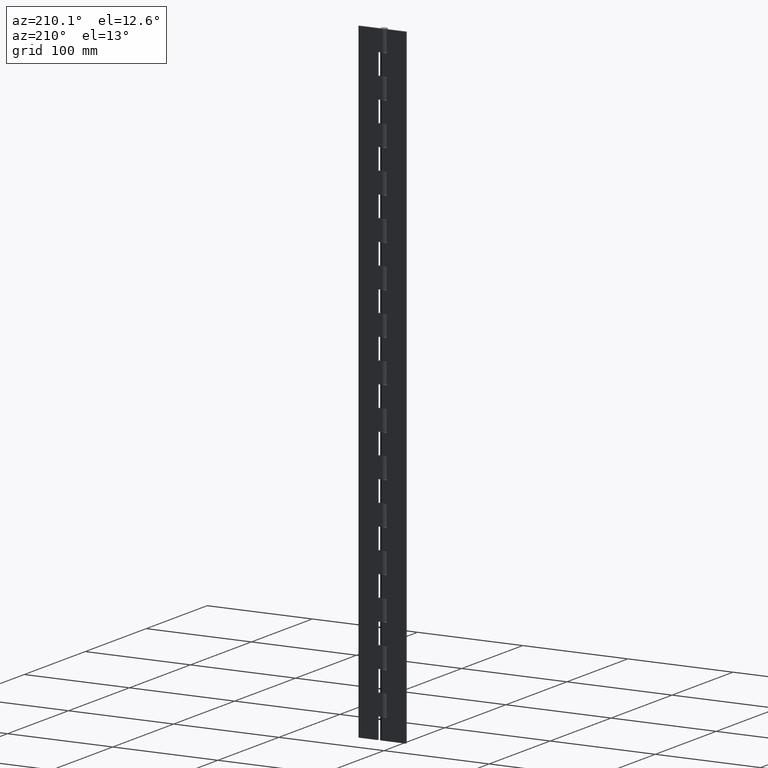
[diagram: clean part render]
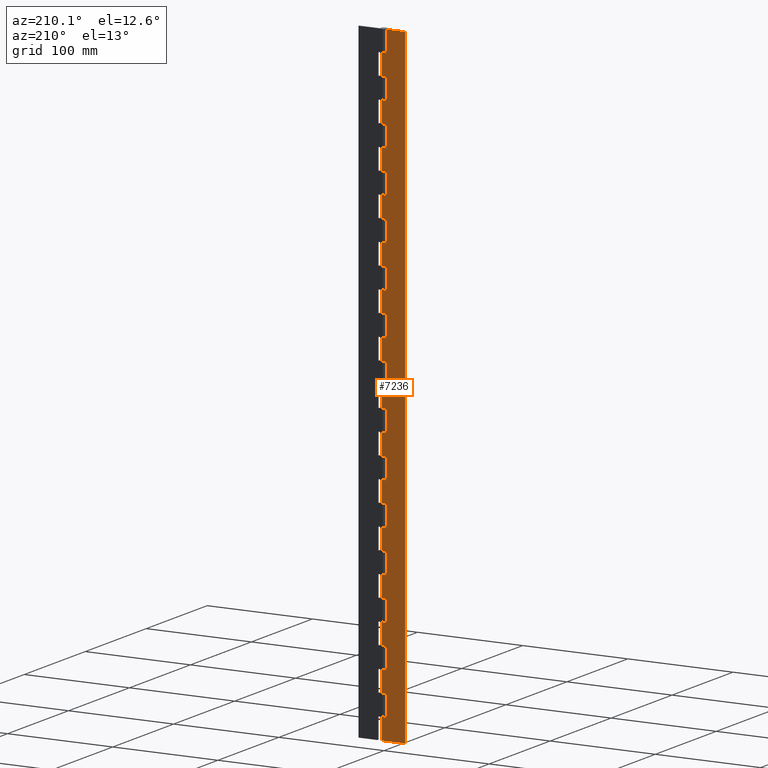
[diagram: same view with one face highlighted and labeled with its STEP entity id]
A machine part, auxiliary view. The second image highlights one B-rep face of the part: STEP entity #7236.
In plain terms, the highlighted face is a freeform B-spline surface patch.
Its self-contained STEP definition (entity closure, byte-faithful):
#4225=CARTESIAN_POINT('',(-4.299994999999895,3.099998000000050,580.0));
#4226=VERTEX_POINT('',#4225);
#4232=CARTESIAN_POINT('',(-4.299994999999895,3.099998000000000,599.999978000000060));
#4233=VERTEX_POINT('',#4232);
#4234=CARTESIAN_POINT('',(-4.299994999999895,3.099998000000050,580.0));
#4235=CARTESIAN_POINT('',(-4.299994999999895,3.099998000000000,599.999978000000060));
#4236=QUASI_UNIFORM_CURVE('',1,(#4234,#4235),.UNSPECIFIED.,.F.,.U.);
#4237=EDGE_CURVE('',#4226,#4233,#4236,.T.);
#4254=CARTESIAN_POINT('',(0.003521362805219,3.099998000000000,580.0));
#4255=VERTEX_POINT('',#4254);
#4275=CARTESIAN_POINT('',(0.003521362805219,3.099998000000000,580.0));
#4276=CARTESIAN_POINT('',(-4.299994999999895,3.099998000000050,580.0));
#4277=QUASI_UNIFORM_CURVE('',1,(#4275,#4276),.UNSPECIFIED.,.F.,.U.);
#4278=EDGE_CURVE('',#4255,#4226,#4277,.T.);
#4322=CARTESIAN_POINT('',(0.003521362805219,3.099998000000000,560.000008000000090));
#4323=VERTEX_POINT('',#4322);
#4380=CARTESIAN_POINT('',(-4.299994999999895,3.099998000000050,560.000008000000090));
#4381=VERTEX_POINT('',#4380);
#4387=CARTESIAN_POINT('',(-4.299994999999895,3.099998000000050,560.000008000000090));
#4388=CARTESIAN_POINT('',(0.003521362805219,3.099998000000000,560.000008000000090));
#4389=QUASI_UNIFORM_CURVE('',1,(#4387,#4388),.UNSPECIFIED.,.F.,.U.);
#4390=EDGE_CURVE('',#4381,#4323,#4389,.T.);
#4407=CARTESIAN_POINT('',(-4.299994999999895,3.099998000000050,540.0));
#4408=VERTEX_POINT('',#4407);
#4414=CARTESIAN_POINT('',(-4.299994999999895,3.099998000000050,540.0));
#4415=CARTESIAN_POINT('',(-4.299994999999895,3.099998000000050,560.000008000000090));
#4416=QUASI_UNIFORM_CURVE('',1,(#4414,#4415),.UNSPECIFIED.,.F.,.U.);
#4417=EDGE_CURVE('',#4408,#4381,#4416,.T.);
#4430=CARTESIAN_POINT('',(0.003521362805219,3.099998000000000,540.0));
#4431=VERTEX_POINT('',#4430);
#4451=CARTESIAN_POINT('',(0.003521362805219,3.099998000000000,540.0));
#4452=CARTESIAN_POINT('',(-4.299994999999895,3.099998000000050,540.0));
#4453=QUASI_UNIFORM_CURVE('',1,(#4451,#4452),.UNSPECIFIED.,.F.,.U.);
#4454=EDGE_CURVE('',#4431,#4408,#4453,.T.);
#4498=CARTESIAN_POINT('',(0.003521362805219,3.099998000000000,520.000007999999980));
#4499=VERTEX_POINT('',#4498);
#4556=CARTESIAN_POINT('',(-4.299994999999895,3.099998000000050,520.000007999999980));
#4557=VERTEX_POINT('',#4556);
#4563=CARTESIAN_POINT('',(-4.299994999999895,3.099998000000050,520.000007999999980));
#4564=CARTESIAN_POINT('',(0.003521362805219,3.099998000000000,520.000007999999980));
#4565=QUASI_UNIFORM_CURVE('',1,(#4563,#4564),.UNSPECIFIED.,.F.,.U.);
#4566=EDGE_CURVE('',#4557,#4499,#4565,.T.);
#4583=CARTESIAN_POINT('',(-4.299994999999895,3.099998000000050,500.0));
#4584=VERTEX_POINT('',#4583);
#4590=CARTESIAN_POINT('',(-4.299994999999895,3.099998000000050,500.0));
#4591=CARTESIAN_POINT('',(-4.299994999999895,3.099998000000050,520.000007999999980));
#4592=QUASI_UNIFORM_CURVE('',1,(#4590,#4591),.UNSPECIFIED.,.F.,.U.);
#4593=EDGE_CURVE('',#4584,#4557,#4592,.T.);
#4606=CARTESIAN_POINT('',(0.003521362805219,3.099998000000000,500.0));
#4607=VERTEX_POINT('',#4606);
#4627=CARTESIAN_POINT('',(0.003521362805219,3.099998000000000,500.0));
#4628=CARTESIAN_POINT('',(-4.299994999999895,3.099998000000050,500.0));
#4629=QUASI_UNIFORM_CURVE('',1,(#4627,#4628),.UNSPECIFIED.,.F.,.U.);
#4630=EDGE_CURVE('',#4607,#4584,#4629,.T.);
#4674=CARTESIAN_POINT('',(0.003521362805219,3.099998000000000,480.000007999999980));
#4675=VERTEX_POINT('',#4674);
#4732=CARTESIAN_POINT('',(-4.299994999999895,3.099998000000050,480.000007999999980));
#4733=VERTEX_POINT('',#4732);
#4739=CARTESIAN_POINT('',(-4.299994999999895,3.099998000000050,480.000007999999980));
#4740=CARTESIAN_POINT('',(0.003521362805219,3.099998000000000,480.000007999999980));
#4741=QUASI_UNIFORM_CURVE('',1,(#4739,#4740),.UNSPECIFIED.,.F.,.U.);
#4742=EDGE_CURVE('',#4733,#4675,#4741,.T.);
#4759=CARTESIAN_POINT('',(-4.299994999999895,3.099998000000050,460.0));
#4760=VERTEX_POINT('',#4759);
#4766=CARTESIAN_POINT('',(-4.299994999999895,3.099998000000050,460.0));
#4767=CARTESIAN_POINT('',(-4.299994999999895,3.099998000000050,480.000007999999980));
#4768=QUASI_UNIFORM_CURVE('',1,(#4766,#4767),.UNSPECIFIED.,.F.,.U.);
#4769=EDGE_CURVE('',#4760,#4733,#4768,.T.);
#4782=CARTESIAN_POINT('',(0.003521362805219,3.099998000000000,460.0));
#4783=VERTEX_POINT('',#4782);
#4803=CARTESIAN_POINT('',(0.003521362805219,3.099998000000000,460.0));
#4804=CARTESIAN_POINT('',(-4.299994999999895,3.099998000000050,460.0));
#4805=QUASI_UNIFORM_CURVE('',1,(#4803,#4804),.UNSPECIFIED.,.F.,.U.);
#4806=EDGE_CURVE('',#4783,#4760,#4805,.T.);
#4850=CARTESIAN_POINT('',(0.003521362805219,3.099998000000000,440.000007999999980));
#4851=VERTEX_POINT('',#4850);
#4908=CARTESIAN_POINT('',(-4.299994999999895,3.099998000000050,440.000007999999980));
#4909=VERTEX_POINT('',#4908);
#4915=CARTESIAN_POINT('',(-4.299994999999895,3.099998000000050,440.000007999999980));
#4916=CARTESIAN_POINT('',(0.003521362805219,3.099998000000000,440.000007999999980));
#4917=QUASI_UNIFORM_CURVE('',1,(#4915,#4916),.UNSPECIFIED.,.F.,.U.);
#4918=EDGE_CURVE('',#4909,#4851,#4917,.T.);
#4935=CARTESIAN_POINT('',(-4.299994999999895,3.099998000000050,420.0));
#4936=VERTEX_POINT('',#4935);
#4942=CARTESIAN_POINT('',(-4.299994999999895,3.099998000000050,420.0));
#4943=CARTESIAN_POINT('',(-4.299994999999895,3.099998000000050,440.000007999999980));
#4944=QUASI_UNIFORM_CURVE('',1,(#4942,#4943),.UNSPECIFIED.,.F.,.U.);
#4945=EDGE_CURVE('',#4936,#4909,#4944,.T.);
#4958=CARTESIAN_POINT('',(0.003521362805219,3.099998000000000,420.0));
#4959=VERTEX_POINT('',#4958);
#4979=CARTESIAN_POINT('',(0.003521362805219,3.099998000000000,420.0));
#4980=CARTESIAN_POINT('',(-4.299994999999895,3.099998000000050,420.0));
#4981=QUASI_UNIFORM_CURVE('',1,(#4979,#4980),.UNSPECIFIED.,.F.,.U.);
#4982=EDGE_CURVE('',#4959,#4936,#4981,.T.);
#5026=CARTESIAN_POINT('',(0.003521362805219,3.099998000000000,400.000007999999980));
#5027=VERTEX_POINT('',#5026);
#5084=CARTESIAN_POINT('',(-4.299994999999895,3.099998000000050,400.000007999999980));
#5085=VERTEX_POINT('',#5084);
#5091=CARTESIAN_POINT('',(-4.299994999999895,3.099998000000050,400.000007999999980));
#5092=CARTESIAN_POINT('',(0.003521362805219,3.099998000000000,400.000007999999980));
#5093=QUASI_UNIFORM_CURVE('',1,(#5091,#5092),.UNSPECIFIED.,.F.,.U.);
#5094=EDGE_CURVE('',#5085,#5027,#5093,.T.);
#5111=CARTESIAN_POINT('',(-4.299994999999895,3.099998000000050,380.0));
#5112=VERTEX_POINT('',#5111);
#5118=CARTESIAN_POINT('',(-4.299994999999895,3.099998000000050,380.0));
#5119=CARTESIAN_POINT('',(-4.299994999999895,3.099998000000050,400.000007999999980));
#5120=QUASI_UNIFORM_CURVE('',1,(#5118,#5119),.UNSPECIFIED.,.F.,.U.);
#5121=EDGE_CURVE('',#5112,#5085,#5120,.T.);
#5134=CARTESIAN_POINT('',(0.003521362805219,3.099998000000000,380.0));
#5135=VERTEX_POINT('',#5134);
#5155=CARTESIAN_POINT('',(0.003521362805219,3.099998000000000,380.0));
#5156=CARTESIAN_POINT('',(-4.299994999999895,3.099998000000050,380.0));
#5157=QUASI_UNIFORM_CURVE('',1,(#5155,#5156),.UNSPECIFIED.,.F.,.U.);
#5158=EDGE_CURVE('',#5135,#5112,#5157,.T.);
#5202=CARTESIAN_POINT('',(0.003521362805219,3.099998000000000,360.000007999999980));
#5203=VERTEX_POINT('',#5202);
#5260=CARTESIAN_POINT('',(-4.299994999999895,3.099998000000050,360.000007999999980));
#5261=VERTEX_POINT('',#5260);
#5267=CARTESIAN_POINT('',(-4.299994999999895,3.099998000000050,360.000007999999980));
#5268=CARTESIAN_POINT('',(0.003521362805219,3.099998000000000,360.000007999999980));
#5269=QUASI_UNIFORM_CURVE('',1,(#5267,#5268),.UNSPECIFIED.,.F.,.U.);
#5270=EDGE_CURVE('',#5261,#5203,#5269,.T.);
#5287=CARTESIAN_POINT('',(-4.299994999999895,3.099998000000050,340.0));
#5288=VERTEX_POINT('',#5287);
#5294=CARTESIAN_POINT('',(-4.299994999999895,3.099998000000050,340.0));
#5295=CARTESIAN_POINT('',(-4.299994999999895,3.099998000000050,360.000007999999980));
#5296=QUASI_UNIFORM_CURVE('',1,(#5294,#5295),.UNSPECIFIED.,.F.,.U.);
#5297=EDGE_CURVE('',#5288,#5261,#5296,.T.);
#5310=CARTESIAN_POINT('',(0.003521362805219,3.099998000000000,340.0));
#5311=VERTEX_POINT('',#5310);
#5331=CARTESIAN_POINT('',(0.003521362805219,3.099998000000000,340.0));
#5332=CARTESIAN_POINT('',(-4.299994999999895,3.099998000000050,340.0));
#5333=QUASI_UNIFORM_CURVE('',1,(#5331,#5332),.UNSPECIFIED.,.F.,.U.);
#5334=EDGE_CURVE('',#5311,#5288,#5333,.T.);
#5378=CARTESIAN_POINT('',(0.003521362805219,3.099998000000000,320.000007999999980));
#5379=VERTEX_POINT('',#5378);
#5436=CARTESIAN_POINT('',(-4.299994999999895,3.099998000000050,320.000007999999980));
#5437=VERTEX_POINT('',#5436);
#5443=CARTESIAN_POINT('',(-4.299994999999895,3.099998000000050,320.000007999999980));
#5444=CARTESIAN_POINT('',(0.003521362805219,3.099998000000000,320.000007999999980));
#5445=QUASI_UNIFORM_CURVE('',1,(#5443,#5444),.UNSPECIFIED.,.F.,.U.);
#5446=EDGE_CURVE('',#5437,#5379,#5445,.T.);
#5463=CARTESIAN_POINT('',(-4.299994999999895,3.099998000000050,300.0));
#5464=VERTEX_POINT('',#5463);
#5470=CARTESIAN_POINT('',(-4.299994999999895,3.099998000000050,300.0));
#5471=CARTESIAN_POINT('',(-4.299994999999895,3.099998000000050,320.000007999999980));
#5472=QUASI_UNIFORM_CURVE('',1,(#5470,#5471),.UNSPECIFIED.,.F.,.U.);
#5473=EDGE_CURVE('',#5464,#5437,#5472,.T.);
#5486=CARTESIAN_POINT('',(0.003521362805219,3.099998000000000,300.0));
#5487=VERTEX_POINT('',#5486);
#5507=CARTESIAN_POINT('',(0.003521362805219,3.099998000000000,300.0));
#5508=CARTESIAN_POINT('',(-4.299994999999895,3.099998000000050,300.0));
#5509=QUASI_UNIFORM_CURVE('',1,(#5507,#5508),.UNSPECIFIED.,.F.,.U.);
#5510=EDGE_CURVE('',#5487,#5464,#5509,.T.);
#5554=CARTESIAN_POINT('',(0.003521362805219,3.099998000000000,280.000007999999980));
#5555=VERTEX_POINT('',#5554);
#5612=CARTESIAN_POINT('',(-4.299994999999895,3.099998000000050,280.000007999999980));
#5613=VERTEX_POINT('',#5612);
#5619=CARTESIAN_POINT('',(-4.299994999999895,3.099998000000050,280.000007999999980));
#5620=CARTESIAN_POINT('',(0.003521362805219,3.099998000000000,280.000007999999980));
#5621=QUASI_UNIFORM_CURVE('',1,(#5619,#5620),.UNSPECIFIED.,.F.,.U.);
#5622=EDGE_CURVE('',#5613,#5555,#5621,.T.);
#5639=CARTESIAN_POINT('',(-4.299994999999895,3.099998000000050,260.0));
#5640=VERTEX_POINT('',#5639);
#5646=CARTESIAN_POINT('',(-4.299994999999895,3.099998000000050,260.0));
#5647=CARTESIAN_POINT('',(-4.299994999999895,3.099998000000050,280.000007999999980));
#5648=QUASI_UNIFORM_CURVE('',1,(#5646,#5647),.UNSPECIFIED.,.F.,.U.);
#5649=EDGE_CURVE('',#5640,#5613,#5648,.T.);
#5662=CARTESIAN_POINT('',(0.003521362805219,3.099998000000000,260.0));
#5663=VERTEX_POINT('',#5662);
#5683=CARTESIAN_POINT('',(0.003521362805219,3.099998000000000,260.0));
#5684=CARTESIAN_POINT('',(-4.299994999999895,3.099998000000050,260.0));
#5685=QUASI_UNIFORM_CURVE('',1,(#5683,#5684),.UNSPECIFIED.,.F.,.U.);
#5686=EDGE_CURVE('',#5663,#5640,#5685,.T.);
#5730=CARTESIAN_POINT('',(0.003521362805219,3.099998000000000,240.000008000000010));
#5731=VERTEX_POINT('',#5730);
#5788=CARTESIAN_POINT('',(-4.299994999999895,3.099998000000050,240.000008000000010));
#5789=VERTEX_POINT('',#5788);
#5795=CARTESIAN_POINT('',(-4.299994999999895,3.099998000000050,240.000008000000010));
#5796=CARTESIAN_POINT('',(0.003521362805219,3.099998000000000,240.000008000000010));
#5797=QUASI_UNIFORM_CURVE('',1,(#5795,#5796),.UNSPECIFIED.,.F.,.U.);
#5798=EDGE_CURVE('',#5789,#5731,#5797,.T.);
#5815=CARTESIAN_POINT('',(-4.299994999999895,3.099998000000050,220.0));
#5816=VERTEX_POINT('',#5815);
#5822=CARTESIAN_POINT('',(-4.299994999999895,3.099998000000050,220.0));
#5823=CARTESIAN_POINT('',(-4.299994999999895,3.099998000000050,240.000008000000010));
#5824=QUASI_UNIFORM_CURVE('',1,(#5822,#5823),.UNSPECIFIED.,.F.,.U.);
#5825=EDGE_CURVE('',#5816,#5789,#5824,.T.);
#5838=CARTESIAN_POINT('',(0.003521362805219,3.099998000000000,220.0));
#5839=VERTEX_POINT('',#5838);
#5859=CARTESIAN_POINT('',(0.003521362805219,3.099998000000000,220.0));
#5860=CARTESIAN_POINT('',(-4.299994999999895,3.099998000000050,220.0));
#5861=QUASI_UNIFORM_CURVE('',1,(#5859,#5860),.UNSPECIFIED.,.F.,.U.);
#5862=EDGE_CURVE('',#5839,#5816,#5861,.T.);
#5906=CARTESIAN_POINT('',(0.003521362805219,3.099998000000000,200.000008000000010));
#5907=VERTEX_POINT('',#5906);
#5964=CARTESIAN_POINT('',(-4.299994999999895,3.099998000000050,200.000008000000010));
#5965=VERTEX_POINT('',#5964);
#5971=CARTESIAN_POINT('',(-4.299994999999895,3.099998000000050,200.000008000000010));
#5972=CARTESIAN_POINT('',(0.003521362805219,3.099998000000000,200.000008000000010));
#5973=QUASI_UNIFORM_CURVE('',1,(#5971,#5972),.UNSPECIFIED.,.F.,.U.);
#5974=EDGE_CURVE('',#5965,#5907,#5973,.T.);
#5991=CARTESIAN_POINT('',(-4.299994999999895,3.099998000000050,180.0));
#5992=VERTEX_POINT('',#5991);
#5998=CARTESIAN_POINT('',(-4.299994999999895,3.099998000000050,180.0));
#5999=CARTESIAN_POINT('',(-4.299994999999895,3.099998000000050,200.000008000000010));
#6000=QUASI_UNIFORM_CURVE('',1,(#5998,#5999),.UNSPECIFIED.,.F.,.U.);
#6001=EDGE_CURVE('',#5992,#5965,#6000,.T.);
#6014=CARTESIAN_POINT('',(0.003521362805219,3.099998000000000,180.0));
#6015=VERTEX_POINT('',#6014);
#6035=CARTESIAN_POINT('',(0.003521362805219,3.099998000000000,180.0));
#6036=CARTESIAN_POINT('',(-4.299994999999895,3.099998000000050,180.0));
#6037=QUASI_UNIFORM_CURVE('',1,(#6035,#6036),.UNSPECIFIED.,.F.,.U.);
#6038=EDGE_CURVE('',#6015,#5992,#6037,.T.);
#6082=CARTESIAN_POINT('',(0.003521362805219,3.099998000000000,160.000008000000010));
#6083=VERTEX_POINT('',#6082);
#6140=CARTESIAN_POINT('',(-4.299994999999895,3.099998000000050,160.000008000000010));
#6141=VERTEX_POINT('',#6140);
#6147=CARTESIAN_POINT('',(-4.299994999999895,3.099998000000050,160.000008000000010));
#6148=CARTESIAN_POINT('',(0.003521362805219,3.099998000000000,160.000008000000010));
#6149=QUASI_UNIFORM_CURVE('',1,(#6147,#6148),.UNSPECIFIED.,.F.,.U.);
#6150=EDGE_CURVE('',#6141,#6083,#6149,.T.);
#6167=CARTESIAN_POINT('',(-4.299994999999895,3.099998000000050,140.0));
#6168=VERTEX_POINT('',#6167);
#6174=CARTESIAN_POINT('',(-4.299994999999895,3.099998000000050,140.0));
#6175=CARTESIAN_POINT('',(-4.299994999999895,3.099998000000050,160.000008000000010));
#6176=QUASI_UNIFORM_CURVE('',1,(#6174,#6175),.UNSPECIFIED.,.F.,.U.);
#6177=EDGE_CURVE('',#6168,#6141,#6176,.T.);
#6190=CARTESIAN_POINT('',(0.003521362805219,3.099998000000000,140.0));
#6191=VERTEX_POINT('',#6190);
#6211=CARTESIAN_POINT('',(0.003521362805219,3.099998000000000,140.0));
#6212=CARTESIAN_POINT('',(-4.299994999999895,3.099998000000050,140.0));
#6213=QUASI_UNIFORM_CURVE('',1,(#6211,#6212),.UNSPECIFIED.,.F.,.U.);
#6214=EDGE_CURVE('',#6191,#6168,#6213,.T.);
#6258=CARTESIAN_POINT('',(0.003521362805219,3.099998000000000,120.000007999999990));
#6259=VERTEX_POINT('',#6258);
#6316=CARTESIAN_POINT('',(-4.299994999999895,3.099998000000050,120.000007999999990));
#6317=VERTEX_POINT('',#6316);
#6323=CARTESIAN_POINT('',(-4.299994999999895,3.099998000000050,120.000007999999990));
#6324=CARTESIAN_POINT('',(0.003521362805219,3.099998000000000,120.000007999999990));
#6325=QUASI_UNIFORM_CURVE('',1,(#6323,#6324),.UNSPECIFIED.,.F.,.U.);
#6326=EDGE_CURVE('',#6317,#6259,#6325,.T.);
#6343=CARTESIAN_POINT('',(-4.299994999999895,3.099998000000050,100.0));
#6344=VERTEX_POINT('',#6343);
#6350=CARTESIAN_POINT('',(-4.299994999999895,3.099998000000050,100.0));
#6351=CARTESIAN_POINT('',(-4.299994999999895,3.099998000000050,120.000007999999990));
#6352=QUASI_UNIFORM_CURVE('',1,(#6350,#6351),.UNSPECIFIED.,.F.,.U.);
#6353=EDGE_CURVE('',#6344,#6317,#6352,.T.);
#6366=CARTESIAN_POINT('',(0.003521362805219,3.099998000000000,100.0));
#6367=VERTEX_POINT('',#6366);
#6387=CARTESIAN_POINT('',(0.003521362805219,3.099998000000000,100.0));
#6388=CARTESIAN_POINT('',(-4.299994999999895,3.099998000000050,100.0));
#6389=QUASI_UNIFORM_CURVE('',1,(#6387,#6388),.UNSPECIFIED.,.F.,.U.);
#6390=EDGE_CURVE('',#6367,#6344,#6389,.T.);
#6434=CARTESIAN_POINT('',(0.003521362805219,3.099998000000000,80.000007999999895));
#6435=VERTEX_POINT('',#6434);
#6492=CARTESIAN_POINT('',(-4.299994999999895,3.099998000000050,80.000007999999895));
#6493=VERTEX_POINT('',#6492);
#6499=CARTESIAN_POINT('',(-4.299994999999895,3.099998000000050,80.000007999999895));
#6500=CARTESIAN_POINT('',(0.003521362805219,3.099998000000000,80.000007999999895));
#6501=QUASI_UNIFORM_CURVE('',1,(#6499,#6500),.UNSPECIFIED.,.F.,.U.);
#6502=EDGE_CURVE('',#6493,#6435,#6501,.T.);
#6519=CARTESIAN_POINT('',(-4.299994999999895,3.099998000000050,60.0));
#6520=VERTEX_POINT('',#6519);
#6526=CARTESIAN_POINT('',(-4.299994999999895,3.099998000000050,60.0));
#6527=CARTESIAN_POINT('',(-4.299994999999895,3.099998000000050,80.000007999999895));
#6528=QUASI_UNIFORM_CURVE('',1,(#6526,#6527),.UNSPECIFIED.,.F.,.U.);
#6529=EDGE_CURVE('',#6520,#6493,#6528,.T.);
#6542=CARTESIAN_POINT('',(0.003521362805219,3.099998000000000,60.0));
#6543=VERTEX_POINT('',#6542);
#6563=CARTESIAN_POINT('',(0.003521362805219,3.099998000000000,60.0));
#6564=CARTESIAN_POINT('',(-4.299994999999895,3.099998000000050,60.0));
#6565=QUASI_UNIFORM_CURVE('',1,(#6563,#6564),.UNSPECIFIED.,.F.,.U.);
#6566=EDGE_CURVE('',#6543,#6520,#6565,.T.);
#6610=CARTESIAN_POINT('',(0.003521362805220,3.099998000000000,40.000007999999902));
#6611=VERTEX_POINT('',#6610);
#6668=CARTESIAN_POINT('',(-4.299994999999895,3.099998000000050,40.000007999999902));
#6669=VERTEX_POINT('',#6668);
#6675=CARTESIAN_POINT('',(-4.299994999999895,3.099998000000050,40.000007999999902));
#6676=CARTESIAN_POINT('',(0.003521362805220,3.099998000000000,40.000007999999902));
#6677=QUASI_UNIFORM_CURVE('',1,(#6675,#6676),.UNSPECIFIED.,.F.,.U.);
#6678=EDGE_CURVE('',#6669,#6611,#6677,.T.);
#6695=CARTESIAN_POINT('',(-4.299994999999895,3.099998000000050,20.0));
#6696=VERTEX_POINT('',#6695);
#6702=CARTESIAN_POINT('',(-4.299994999999895,3.099998000000050,20.0));
#6703=CARTESIAN_POINT('',(-4.299994999999895,3.099998000000050,40.000007999999902));
#6704=QUASI_UNIFORM_CURVE('',1,(#6702,#6703),.UNSPECIFIED.,.F.,.U.);
#6705=EDGE_CURVE('',#6696,#6669,#6704,.T.);
#6718=CARTESIAN_POINT('',(0.003521362805220,3.099998000000000,20.0));
#6719=VERTEX_POINT('',#6718);
#6739=CARTESIAN_POINT('',(0.003521362805220,3.099998000000000,20.0));
#6740=CARTESIAN_POINT('',(-4.299994999999895,3.099998000000050,20.0));
#6741=QUASI_UNIFORM_CURVE('',1,(#6739,#6740),.UNSPECIFIED.,.F.,.U.);
#6742=EDGE_CURVE('',#6719,#6696,#6741,.T.);
#6788=CARTESIAN_POINT('',(-22.500000000000000,3.099998000000000,0.0));
#6789=VERTEX_POINT('',#6788);
#6795=CARTESIAN_POINT('',(0.003521362805220,3.099998000000000,0.0));
#6796=VERTEX_POINT('',#6795);
#6797=CARTESIAN_POINT('',(-22.500000000000000,3.099998000000000,0.0));
#6798=CARTESIAN_POINT('',(0.003521362805220,3.099998000000000,0.0));
#6799=QUASI_UNIFORM_CURVE('',1,(#6797,#6798),.UNSPECIFIED.,.F.,.U.);
#6800=EDGE_CURVE('',#6789,#6796,#6799,.T.);
#6872=CARTESIAN_POINT('',(-22.500000000000000,3.099998000000000,599.999978000000060));
#6873=VERTEX_POINT('',#6872);
#6874=CARTESIAN_POINT('',(-22.500000000000000,3.099998000000000,599.999978000000060));
#6875=CARTESIAN_POINT('',(-4.299994999999895,3.099998000000000,599.999978000000060));
#6876=QUASI_UNIFORM_CURVE('',1,(#6874,#6875),.UNSPECIFIED.,.F.,.U.);
#6877=EDGE_CURVE('',#6873,#4233,#6876,.T.);
#7099=CARTESIAN_POINT('',(0.003521362805220,3.099998000000000,20.0));
#7100=CARTESIAN_POINT('',(0.003521362805220,3.099998000000000,0.0));
#7101=QUASI_UNIFORM_CURVE('',1,(#7099,#7100),.UNSPECIFIED.,.F.,.U.);
#7102=EDGE_CURVE('',#6719,#6796,#7101,.T.);
#7107=CARTESIAN_POINT('',(-23.624050848455930,3.099998000000000,-29.969997738183640));
#7108=CARTESIAN_POINT('',(-23.624050848455930,3.099998000000000,629.969991831437260));
#7109=CARTESIAN_POINT('',(1.127572814852629,3.099998000000000,-29.969997738183640));
#7110=CARTESIAN_POINT('',(1.127572814852629,3.099998000000000,629.969991831437260));
#7111=B_SPLINE_SURFACE_WITH_KNOTS('',1,1,((#7107,#7109),(#7108,#7110)),.UNSPECIFIED.,.F.,.F.,.U.,(2,2),(2,2),(0.0,659.939989569620930),(0.0,24.751623663308560),.UNSPECIFIED.);
#7112=ORIENTED_EDGE('',*,*,#4278,.F.);
#7113=CARTESIAN_POINT('',(0.003521362805219,3.099998000000000,580.0));
#7114=CARTESIAN_POINT('',(0.003521362805219,3.099998000000000,560.000008000000090));
#7115=QUASI_UNIFORM_CURVE('',1,(#7113,#7114),.UNSPECIFIED.,.F.,.U.);
#7116=EDGE_CURVE('',#4255,#4323,#7115,.T.);
#7117=ORIENTED_EDGE('',*,*,#7116,.T.);
#7118=ORIENTED_EDGE('',*,*,#4390,.F.);
#7119=ORIENTED_EDGE('',*,*,#4417,.F.);
#7120=ORIENTED_EDGE('',*,*,#4454,.F.);
#7121=CARTESIAN_POINT('',(0.003521362805219,3.099998000000000,540.0));
#7122=CARTESIAN_POINT('',(0.003521362805219,3.099998000000000,520.000007999999980));
#7123=QUASI_UNIFORM_CURVE('',1,(#7121,#7122),.UNSPECIFIED.,.F.,.U.);
#7124=EDGE_CURVE('',#4431,#4499,#7123,.T.);
#7125=ORIENTED_EDGE('',*,*,#7124,.T.);
#7126=ORIENTED_EDGE('',*,*,#4566,.F.);
#7127=ORIENTED_EDGE('',*,*,#4593,.F.);
#7128=ORIENTED_EDGE('',*,*,#4630,.F.);
#7129=CARTESIAN_POINT('',(0.003521362805219,3.099998000000000,500.0));
#7130=CARTESIAN_POINT('',(0.003521362805219,3.099998000000000,480.000007999999980));
#7131=QUASI_UNIFORM_CURVE('',1,(#7129,#7130),.UNSPECIFIED.,.F.,.U.);
#7132=EDGE_CURVE('',#4607,#4675,#7131,.T.);
#7133=ORIENTED_EDGE('',*,*,#7132,.T.);
#7134=ORIENTED_EDGE('',*,*,#4742,.F.);
#7135=ORIENTED_EDGE('',*,*,#4769,.F.);
#7136=ORIENTED_EDGE('',*,*,#4806,.F.);
#7137=CARTESIAN_POINT('',(0.003521362805219,3.099998000000000,460.0));
#7138=CARTESIAN_POINT('',(0.003521362805219,3.099998000000000,440.000007999999980));
#7139=QUASI_UNIFORM_CURVE('',1,(#7137,#7138),.UNSPECIFIED.,.F.,.U.);
#7140=EDGE_CURVE('',#4783,#4851,#7139,.T.);
#7141=ORIENTED_EDGE('',*,*,#7140,.T.);
#7142=ORIENTED_EDGE('',*,*,#4918,.F.);
#7143=ORIENTED_EDGE('',*,*,#4945,.F.);
#7144=ORIENTED_EDGE('',*,*,#4982,.F.);
#7145=CARTESIAN_POINT('',(0.003521362805219,3.099998000000000,420.0));
#7146=CARTESIAN_POINT('',(0.003521362805219,3.099998000000000,400.000007999999980));
#7147=QUASI_UNIFORM_CURVE('',1,(#7145,#7146),.UNSPECIFIED.,.F.,.U.);
#7148=EDGE_CURVE('',#4959,#5027,#7147,.T.);
#7149=ORIENTED_EDGE('',*,*,#7148,.T.);
#7150=ORIENTED_EDGE('',*,*,#5094,.F.);
#7151=ORIENTED_EDGE('',*,*,#5121,.F.);
#7152=ORIENTED_EDGE('',*,*,#5158,.F.);
#7153=CARTESIAN_POINT('',(0.003521362805219,3.099998000000000,380.0));
#7154=CARTESIAN_POINT('',(0.003521362805219,3.099998000000000,360.000007999999980));
#7155=QUASI_UNIFORM_CURVE('',1,(#7153,#7154),.UNSPECIFIED.,.F.,.U.);
#7156=EDGE_CURVE('',#5135,#5203,#7155,.T.);
#7157=ORIENTED_EDGE('',*,*,#7156,.T.);
#7158=ORIENTED_EDGE('',*,*,#5270,.F.);
#7159=ORIENTED_EDGE('',*,*,#5297,.F.);
#7160=ORIENTED_EDGE('',*,*,#5334,.F.);
#7161=CARTESIAN_POINT('',(0.003521362805219,3.099998000000000,340.0));
#7162=CARTESIAN_POINT('',(0.003521362805219,3.099998000000000,320.000007999999980));
#7163=QUASI_UNIFORM_CURVE('',1,(#7161,#7162),.UNSPECIFIED.,.F.,.U.);
#7164=EDGE_CURVE('',#5311,#5379,#7163,.T.);
#7165=ORIENTED_EDGE('',*,*,#7164,.T.);
#7166=ORIENTED_EDGE('',*,*,#5446,.F.);
#7167=ORIENTED_EDGE('',*,*,#5473,.F.);
#7168=ORIENTED_EDGE('',*,*,#5510,.F.);
#7169=CARTESIAN_POINT('',(0.003521362805219,3.099998000000000,300.0));
#7170=CARTESIAN_POINT('',(0.003521362805219,3.099998000000000,280.000007999999980));
#7171=QUASI_UNIFORM_CURVE('',1,(#7169,#7170),.UNSPECIFIED.,.F.,.U.);
#7172=EDGE_CURVE('',#5487,#5555,#7171,.T.);
#7173=ORIENTED_EDGE('',*,*,#7172,.T.);
#7174=ORIENTED_EDGE('',*,*,#5622,.F.);
#7175=ORIENTED_EDGE('',*,*,#5649,.F.);
#7176=ORIENTED_EDGE('',*,*,#5686,.F.);
#7177=CARTESIAN_POINT('',(0.003521362805219,3.099998000000000,260.0));
#7178=CARTESIAN_POINT('',(0.003521362805219,3.099998000000000,240.000008000000010));
#7179=QUASI_UNIFORM_CURVE('',1,(#7177,#7178),.UNSPECIFIED.,.F.,.U.);
#7180=EDGE_CURVE('',#5663,#5731,#7179,.T.);
#7181=ORIENTED_EDGE('',*,*,#7180,.T.);
#7182=ORIENTED_EDGE('',*,*,#5798,.F.);
#7183=ORIENTED_EDGE('',*,*,#5825,.F.);
#7184=ORIENTED_EDGE('',*,*,#5862,.F.);
#7185=CARTESIAN_POINT('',(0.003521362805219,3.099998000000000,220.0));
#7186=CARTESIAN_POINT('',(0.003521362805219,3.099998000000000,200.000008000000010));
#7187=QUASI_UNIFORM_CURVE('',1,(#7185,#7186),.UNSPECIFIED.,.F.,.U.);
#7188=EDGE_CURVE('',#5839,#5907,#7187,.T.);
#7189=ORIENTED_EDGE('',*,*,#7188,.T.);
#7190=ORIENTED_EDGE('',*,*,#5974,.F.);
#7191=ORIENTED_EDGE('',*,*,#6001,.F.);
#7192=ORIENTED_EDGE('',*,*,#6038,.F.);
#7193=CARTESIAN_POINT('',(0.003521362805219,3.099998000000000,180.0));
#7194=CARTESIAN_POINT('',(0.003521362805219,3.099998000000000,160.000008000000010));
#7195=QUASI_UNIFORM_CURVE('',1,(#7193,#7194),.UNSPECIFIED.,.F.,.U.);
#7196=EDGE_CURVE('',#6015,#6083,#7195,.T.);
#7197=ORIENTED_EDGE('',*,*,#7196,.T.);
#7198=ORIENTED_EDGE('',*,*,#6150,.F.);
#7199=ORIENTED_EDGE('',*,*,#6177,.F.);
#7200=ORIENTED_EDGE('',*,*,#6214,.F.);
#7201=CARTESIAN_POINT('',(0.003521362805219,3.099998000000000,140.0));
#7202=CARTESIAN_POINT('',(0.003521362805219,3.099998000000000,120.000007999999990));
#7203=QUASI_UNIFORM_CURVE('',1,(#7201,#7202),.UNSPECIFIED.,.F.,.U.);
#7204=EDGE_CURVE('',#6191,#6259,#7203,.T.);
#7205=ORIENTED_EDGE('',*,*,#7204,.T.);
#7206=ORIENTED_EDGE('',*,*,#6326,.F.);
#7207=ORIENTED_EDGE('',*,*,#6353,.F.);
#7208=ORIENTED_EDGE('',*,*,#6390,.F.);
#7209=CARTESIAN_POINT('',(0.003521362805219,3.099998000000000,100.0));
#7210=CARTESIAN_POINT('',(0.003521362805219,3.099998000000000,80.000007999999895));
#7211=QUASI_UNIFORM_CURVE('',1,(#7209,#7210),.UNSPECIFIED.,.F.,.U.);
#7212=EDGE_CURVE('',#6367,#6435,#7211,.T.);
#7213=ORIENTED_EDGE('',*,*,#7212,.T.);
#7214=ORIENTED_EDGE('',*,*,#6502,.F.);
#7215=ORIENTED_EDGE('',*,*,#6529,.F.);
#7216=ORIENTED_EDGE('',*,*,#6566,.F.);
#7217=CARTESIAN_POINT('',(0.003521362805219,3.099998000000000,60.0));
#7218=CARTESIAN_POINT('',(0.003521362805220,3.099998000000000,40.000007999999902));
#7219=QUASI_UNIFORM_CURVE('',1,(#7217,#7218),.UNSPECIFIED.,.F.,.U.);
#7220=EDGE_CURVE('',#6543,#6611,#7219,.T.);
#7221=ORIENTED_EDGE('',*,*,#7220,.T.);
#7222=ORIENTED_EDGE('',*,*,#6678,.F.);
#7223=ORIENTED_EDGE('',*,*,#6705,.F.);
#7224=ORIENTED_EDGE('',*,*,#6742,.F.);
#7225=ORIENTED_EDGE('',*,*,#7102,.T.);
#7226=ORIENTED_EDGE('',*,*,#6800,.F.);
#7227=CARTESIAN_POINT('',(-22.500000000000000,3.099998000000000,599.999978000000060));
#7228=CARTESIAN_POINT('',(-22.500000000000000,3.099998000000000,0.0));
#7229=QUASI_UNIFORM_CURVE('',1,(#7227,#7228),.UNSPECIFIED.,.F.,.U.);
#7230=EDGE_CURVE('',#6873,#6789,#7229,.T.);
#7231=ORIENTED_EDGE('',*,*,#7230,.F.);
#7232=ORIENTED_EDGE('',*,*,#6877,.T.);
#7233=ORIENTED_EDGE('',*,*,#4237,.F.);
#7234=EDGE_LOOP('',(#7112,#7117,#7118,#7119,#7120,#7125,#7126,#7127,#7128,#7133,#7134,#7135,#7136,#7141,#7142,#7143,#7144,#7149,#7150,#7151,#7152,#7157,#7158,#7159,#7160,#7165,#7166,#7167,#7168,#7173,#7174,#7175,#7176,#7181,#7182,#7183,#7184,#7189,#7190,#7191,#7192,#7197,#7198,#7199,#7200,#7205,#7206,#7207,#7208,#7213,#7214,#7215,#7216,#7221,#7222,#7223,#7224,#7225,#7226,#7231,#7232,#7233));
#7235=FACE_OUTER_BOUND('',#7234,.T.);
#7236=ADVANCED_FACE('',(#7235),#7111,.T.);